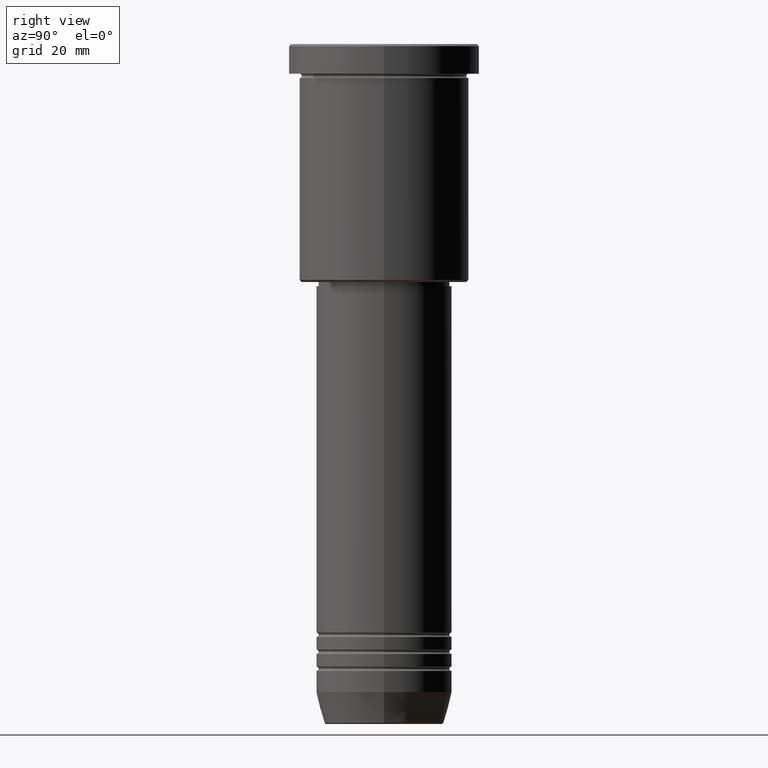
[diagram: clean part render]
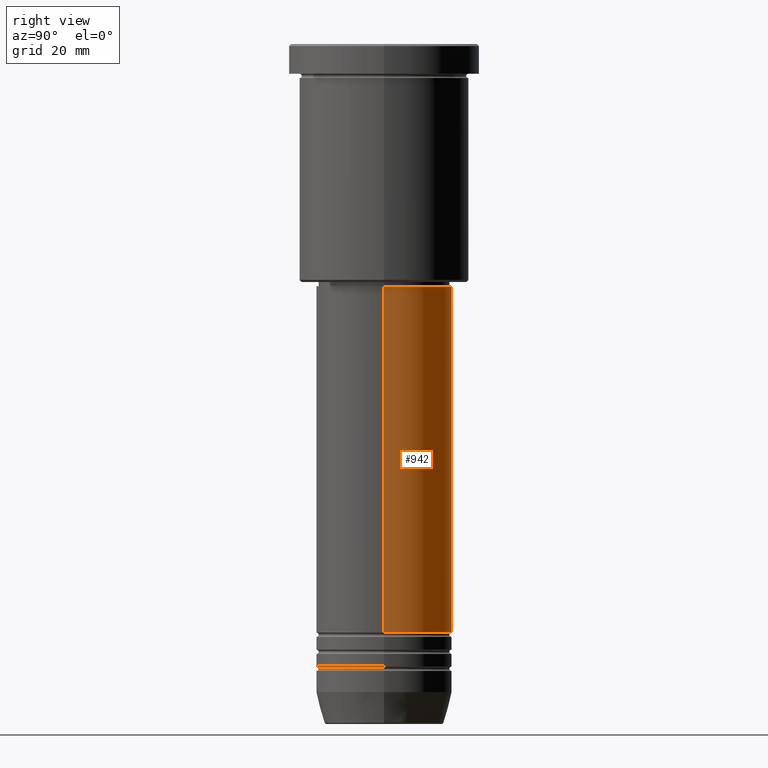
[diagram: same view with one face highlighted and labeled with its STEP entity id]
A machine part, right view. The second image highlights one B-rep face of the part: STEP entity #942.
In plain terms, the highlighted cylindrical surface (partial cylindrical patch) has radius 16 mm, axis along (-0, -0, 1).
Its self-contained STEP definition (entity closure, byte-faithful):
#7 = DIRECTION ( 'NONE',  ( 1.000000000000000000, 0.000000000000000000, 0.000000000000000000 ) ) ;
#32 = ORIENTED_EDGE ( 'NONE', *, *, #934, .T. ) ;
#57 = ORIENTED_EDGE ( 'NONE', *, *, #223, .F. ) ;
#104 = VERTEX_POINT ( 'NONE', #551 ) ;
#167 = CARTESIAN_POINT ( 'NONE',  ( -16.00000000000000000, 1.959434878635765131E-15, -57.00000000000001421 ) ) ;
#191 = DIRECTION ( 'NONE',  ( -0.000000000000000000, -0.000000000000000000, 1.000000000000000000 ) ) ;
#223 = EDGE_CURVE ( 'NONE', #104, #1124, #413, .T. ) ;
#228 = DIRECTION ( 'NONE',  ( 1.000000000000000000, 0.000000000000000000, 0.000000000000000000 ) ) ;
#271 = CYLINDRICAL_SURFACE ( 'NONE', #1117, 16.00000000000000000 ) ;
#273 = LINE ( 'NONE', #635, #659 ) ;
#322 = DIRECTION ( 'NONE',  ( -0.000000000000000000, -0.000000000000000000, 1.000000000000000000 ) ) ;
#395 = AXIS2_PLACEMENT_3D ( 'NONE', #536, #549, #1166 ) ;
#413 = CIRCLE ( 'NONE', #395, 16.00000000000000000 ) ;
#451 = CIRCLE ( 'NONE', #1112, 16.00000000000000000 ) ;
#518 = CARTESIAN_POINT ( 'NONE',  ( -16.00000000000000000, 1.959434878635765131E-15, -138.4999999999999716 ) ) ;
#521 = EDGE_CURVE ( 'NONE', #697, #772, #451, .T. ) ;
#536 = CARTESIAN_POINT ( 'NONE',  ( 0.000000000000000000, 0.000000000000000000, -57.00000000000001421 ) ) ;
#549 = DIRECTION ( 'NONE',  ( -0.000000000000000000, -0.000000000000000000, 1.000000000000000000 ) ) ;
#551 = CARTESIAN_POINT ( 'NONE',  ( 16.00000000000000000, 0.000000000000000000, -57.00000000000001421 ) ) ;
#554 = DIRECTION ( 'NONE',  ( -0.000000000000000000, -0.000000000000000000, 1.000000000000000000 ) ) ;
#571 = EDGE_LOOP ( 'NONE', ( #933, #32, #57, #1028 ) ) ;
#635 = CARTESIAN_POINT ( 'NONE',  ( -16.00000000000000000, 1.959434878635765131E-15, 0.000000000000000000 ) ) ;
#659 = VECTOR ( 'NONE', #191, 1000.000000000000000 ) ;
#676 = DIRECTION ( 'NONE',  ( -0.000000000000000000, -0.000000000000000000, 1.000000000000000000 ) ) ;
#697 = VERTEX_POINT ( 'NONE', #1029 ) ;
#699 = VECTOR ( 'NONE', #676, 1000.000000000000000 ) ;
#701 = LINE ( 'NONE', #1064, #699 ) ;
#723 = CARTESIAN_POINT ( 'NONE',  ( 0.000000000000000000, 0.000000000000000000, 0.000000000000000000 ) ) ;
#735 = FACE_OUTER_BOUND ( 'NONE', #571, .T. ) ;
#772 = VERTEX_POINT ( 'NONE', #518 ) ;
#841 = EDGE_CURVE ( 'NONE', #697, #104, #701, .T. ) ;
#933 = ORIENTED_EDGE ( 'NONE', *, *, #521, .T. ) ;
#934 = EDGE_CURVE ( 'NONE', #772, #1124, #273, .T. ) ;
#942 = ADVANCED_FACE ( 'NONE', ( #735 ), #271, .T. ) ;
#1028 = ORIENTED_EDGE ( 'NONE', *, *, #841, .F. ) ;
#1029 = CARTESIAN_POINT ( 'NONE',  ( 16.00000000000000000, 0.000000000000000000, -138.4999999999999716 ) ) ;
#1064 = CARTESIAN_POINT ( 'NONE',  ( 16.00000000000000000, 0.000000000000000000, 0.000000000000000000 ) ) ;
#1112 = AXIS2_PLACEMENT_3D ( 'NONE', #1143, #322, #228 ) ;
#1117 = AXIS2_PLACEMENT_3D ( 'NONE', #723, #554, #7 ) ;
#1124 = VERTEX_POINT ( 'NONE', #167 ) ;
#1143 = CARTESIAN_POINT ( 'NONE',  ( 0.000000000000000000, 0.000000000000000000, -138.4999999999999716 ) ) ;
#1166 = DIRECTION ( 'NONE',  ( 1.000000000000000000, 0.000000000000000000, 0.000000000000000000 ) ) ;